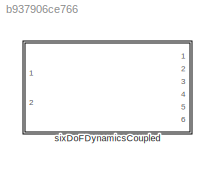
MODEL slx_b937906ce766
KIND library
CONFIG AbsTol = auto
CONFIG EnableMultiTasking = off
CONFIG FixedStep = auto
CONFIG MaxStep = auto
CONFIG MinStep = auto
CONFIG RelTol = 1e-3
CONFIG SampleTimeConstraint = Unconstrained
CONFIG Solver = VariableStepAuto
CONFIG SolverName = VariableStepAuto
CONFIG StartTime = 0.0
CONFIG StopTime = 10.0
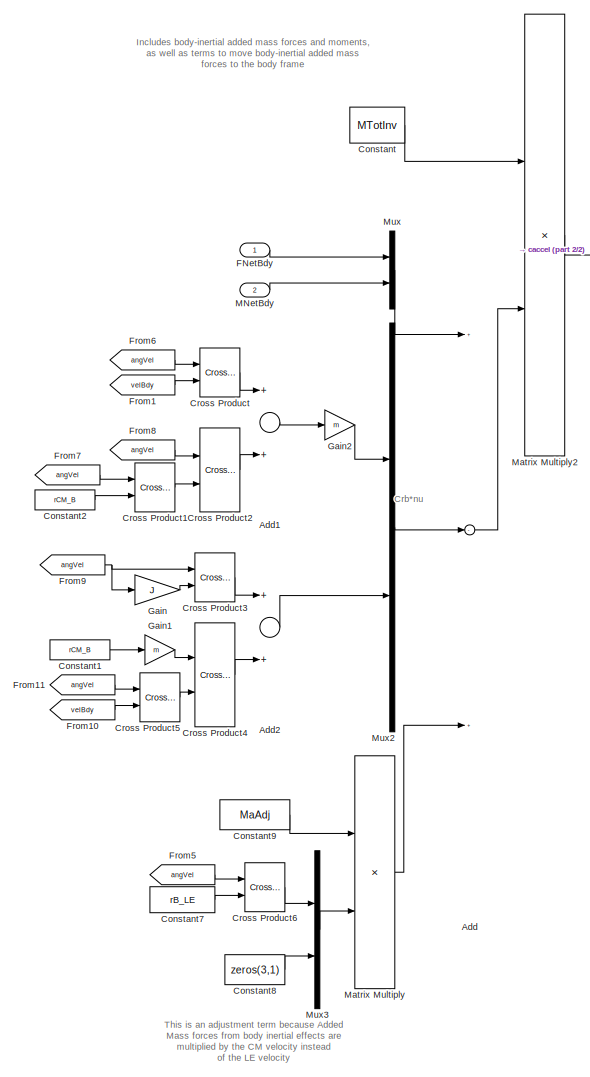
[diagram: sixDoFDynamicsCoupled - part 1/2, left side, full height]
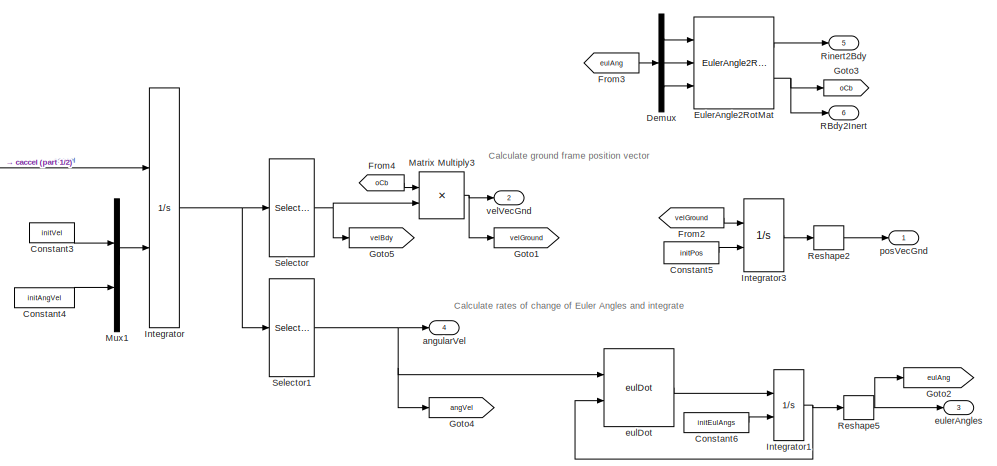
[diagram: sixDoFDynamicsCoupled - part 2/2, top right region]
BLOCK [SubSystem] sixDoFDynamicsCoupled
  Ports = [2, 6]
  RequestExecContextInheritance = off
  VariantControl = (default)
BLOCK [Sum] sixDoFDynamicsCoupled/Add
  InputSameDT = off
  Inputs = +-+
  OutDataTypeStr = Inherit: Inherit via internal rule
  Ports = [3, 1]
  SaturateOnIntegerOverflow = off
BLOCK [Sum] sixDoFDynamicsCoupled/Add1
  InputSameDT = off
  OutDataTypeStr = Inherit: Inherit via internal rule
  Ports = [2, 1]
  SaturateOnIntegerOverflow = off
BLOCK [Sum] sixDoFDynamicsCoupled/Add2
  InputSameDT = off
  OutDataTypeStr = Inherit: Inherit via internal rule
  Ports = [2, 1]
  SaturateOnIntegerOverflow = off
BLOCK [Constant] sixDoFDynamicsCoupled/Constant
  Value = MTotInv
  VectorParams1D = off
BLOCK [Constant] sixDoFDynamicsCoupled/Constant1
  Value = rCM_B
BLOCK [Constant] sixDoFDynamicsCoupled/Constant2
  Value = rCM_B
BLOCK [Constant] sixDoFDynamicsCoupled/Constant3
  Value = initVel
BLOCK [Constant] sixDoFDynamicsCoupled/Constant4
  Value = initAngVel
BLOCK [Constant] sixDoFDynamicsCoupled/Constant5
  Value = initPos
BLOCK [Constant] sixDoFDynamicsCoupled/Constant6
  Value = initEulAngs
BLOCK [Constant] sixDoFDynamicsCoupled/Constant7
  Value = rB_LE
BLOCK [Constant] sixDoFDynamicsCoupled/Constant8
  Value = zeros(3,1)
BLOCK [Constant] sixDoFDynamicsCoupled/Constant9
  Value = MaAdj
BLOCK [Reference] sixDoFDynamicsCoupled/Cross Product  REF=vrlib/Utilities/Cross Product
  Ports = [2, 1]
  SourceBlock = vrlib/Utilities/Cross Product
  SourceProductBaseCode = VR
  SourceProductName = Simulink 3D Animation
  SourceType = Cross Product
BLOCK [Reference] sixDoFDynamicsCoupled/Cross Product1  REF=vrlib/Utilities/Cross Product
  Ports = [2, 1]
  SourceBlock = vrlib/Utilities/Cross Product
  SourceProductBaseCode = VR
  SourceProductName = Simulink 3D Animation
  SourceType = Cross Product
BLOCK [Reference] sixDoFDynamicsCoupled/Cross Product2  REF=vrlib/Utilities/Cross Product
  Ports = [2, 1]
  SourceBlock = vrlib/Utilities/Cross Product
  SourceProductBaseCode = VR
  SourceProductName = Simulink 3D Animation
  SourceType = Cross Product
BLOCK [Reference] sixDoFDynamicsCoupled/Cross Product3  REF=vrlib/Utilities/Cross Product
  Ports = [2, 1]
  SourceBlock = vrlib/Utilities/Cross Product
  SourceProductBaseCode = VR
  SourceProductName = Simulink 3D Animation
  SourceType = Cross Product
BLOCK [Reference] sixDoFDynamicsCoupled/Cross Product4  REF=vrlib/Utilities/Cross Product
  Ports = [2, 1]
  SourceBlock = vrlib/Utilities/Cross Product
  SourceProductBaseCode = VR
  SourceProductName = Simulink 3D Animation
  SourceType = Cross Product
BLOCK [Reference] sixDoFDynamicsCoupled/Cross Product5  REF=vrlib/Utilities/Cross Product
  Ports = [2, 1]
  SourceBlock = vrlib/Utilities/Cross Product
  SourceProductBaseCode = VR
  SourceProductName = Simulink 3D Animation
  SourceType = Cross Product
BLOCK [Reference] sixDoFDynamicsCoupled/Cross Product6  REF=vrlib/Utilities/Cross Product
  Ports = [2, 1]
  SourceBlock = vrlib/Utilities/Cross Product
  SourceProductBaseCode = VR
  SourceProductName = Simulink 3D Animation
  SourceType = Cross Product
BLOCK [Demux] sixDoFDynamicsCoupled/Demux
  DisplayOption = bar
  Outputs = 3
  Ports = [1, 3]
BLOCK [Reference] sixDoFDynamicsCoupled/EulerAngle2RotMat  REF=eulAng2RotMat_ul/EulerAngle2RotMat
  Ports = [3, 2]
  SourceBlock = eulAng2RotMat_ul/EulerAngle2RotMat
  SourceType = SubSystem
BLOCK [Inport] sixDoFDynamicsCoupled/FNetBdy
  IconDisplay = Port number
BLOCK [From] sixDoFDynamicsCoupled/From1
  GotoTag = velBdy
BLOCK [From] sixDoFDynamicsCoupled/From10
  GotoTag = velBdy
BLOCK [From] sixDoFDynamicsCoupled/From11
  GotoTag = angVel
BLOCK [From] sixDoFDynamicsCoupled/From2
  GotoTag = velGround
BLOCK [From] sixDoFDynamicsCoupled/From3
  GotoTag = eulAng
BLOCK [From] sixDoFDynamicsCoupled/From4
  GotoTag = oCb
BLOCK [From] sixDoFDynamicsCoupled/From5
  GotoTag = angVel
BLOCK [From] sixDoFDynamicsCoupled/From6
  GotoTag = angVel
BLOCK [From] sixDoFDynamicsCoupled/From7
  GotoTag = angVel
BLOCK [From] sixDoFDynamicsCoupled/From8
  GotoTag = angVel
BLOCK [From] sixDoFDynamicsCoupled/From9
  GotoTag = angVel
BLOCK [Gain] sixDoFDynamicsCoupled/Gain
  Gain = J
  Multiplication = Matrix(K*u)
  OutDataTypeStr = Inherit: Inherit via internal rule
  ParamDataTypeStr = Inherit: Inherit via internal rule
  SaturateOnIntegerOverflow = off
BLOCK [Gain] sixDoFDynamicsCoupled/Gain1
  Gain = m
  OutDataTypeStr = Inherit: Inherit via internal rule
  ParamDataTypeStr = Inherit: Inherit via internal rule
  SaturateOnIntegerOverflow = off
BLOCK [Gain] sixDoFDynamicsCoupled/Gain2
  Gain = m
  OutDataTypeStr = Inherit: Inherit via internal rule
  ParamDataTypeStr = Inherit: Inherit via internal rule
  SaturateOnIntegerOverflow = off
BLOCK [Goto] sixDoFDynamicsCoupled/Goto1
  GotoTag = velGround
BLOCK [Goto] sixDoFDynamicsCoupled/Goto2
  GotoTag = eulAng
BLOCK [Goto] sixDoFDynamicsCoupled/Goto3
  GotoTag = oCb
BLOCK [Goto] sixDoFDynamicsCoupled/Goto4
  GotoTag = angVel
BLOCK [Goto] sixDoFDynamicsCoupled/Goto5
  GotoTag = velBdy
BLOCK [Integrator] sixDoFDynamicsCoupled/Integrator
  InitialConditionSource = external
  Ports = [2, 1]
BLOCK [Integrator] sixDoFDynamicsCoupled/Integrator1
  InitialCondition = initEulAngs
  InitialConditionSource = external
  Ports = [2, 1]
BLOCK [Integrator] sixDoFDynamicsCoupled/Integrator3
  InitialCondition = initPos
  InitialConditionSource = external
  Ports = [2, 1]
BLOCK [Inport] sixDoFDynamicsCoupled/MNetBdy
  IconDisplay = Port number
  Port = 2
BLOCK [Product] sixDoFDynamicsCoupled/Matrix Multiply
  InputSameDT = off
  Multiplication = Matrix(*)
  OutDataTypeStr = Inherit: Inherit via internal rule
  Ports = [2, 1]
  RndMeth = Floor
  SaturateOnIntegerOverflow = off
BLOCK [Product] sixDoFDynamicsCoupled/Matrix Multiply2
  InputSameDT = off
  Multiplication = Matrix(*)
  OutDataTypeStr = Inherit: Inherit via internal rule
  Ports = [2, 1]
  RndMeth = Floor
  SaturateOnIntegerOverflow = off
BLOCK [Product] sixDoFDynamicsCoupled/Matrix Multiply3
  InputSameDT = off
  Multiplication = Matrix(*)
  OutDataTypeStr = Inherit: Inherit via internal rule
  Ports = [2, 1]
  RndMeth = Floor
  SaturateOnIntegerOverflow = off
BLOCK [Mux] sixDoFDynamicsCoupled/Mux
  DisplayOption = bar
  Inputs = 2
  Ports = [2, 1]
BLOCK [Mux] sixDoFDynamicsCoupled/Mux1
  DisplayOption = bar
  Inputs = 2
  Ports = [2, 1]
BLOCK [Mux] sixDoFDynamicsCoupled/Mux2
  DisplayOption = bar
  Inputs = 2
  Ports = [2, 1]
BLOCK [Mux] sixDoFDynamicsCoupled/Mux3
  DisplayOption = bar
  Inputs = 2
  Ports = [2, 1]
BLOCK [Outport] sixDoFDynamicsCoupled/RBdy2Inert
  IconDisplay = Port number
  Port = 6
BLOCK [Reshape] sixDoFDynamicsCoupled/Reshape2
  OutputDimensionality = Column vector (2-D)
  Ports = [1, 1]
BLOCK [Reshape] sixDoFDynamicsCoupled/Reshape5
  OutputDimensionality = Column vector (2-D)
  Ports = [1, 1]
BLOCK [Outport] sixDoFDynamicsCoupled/Rinert2Bdy
  IconDisplay = Port number
  Port = 5
BLOCK [Selector] sixDoFDynamicsCoupled/Selector
  IndexOptions = Index vector (dialog)
  Indices = [1 2 3]
  InputPortWidth = 6
  OutputSizes = 1
  Ports = [1, 1]
BLOCK [Selector] sixDoFDynamicsCoupled/Selector1
  IndexOptions = Index vector (dialog)
  Indices = [4 5 6]
  InputPortWidth = 6
  OutputSizes = 1
  Ports = [1, 1]
BLOCK [Outport] sixDoFDynamicsCoupled/angularVel
  IconDisplay = Port number
  Port = 4
BLOCK [Reference] sixDoFDynamicsCoupled/eulDot  REF=eulDot/eulDot
  Ports = [2, 1]
  SourceBlock = eulDot/eulDot
  SourceType = SubSystem
BLOCK [Outport] sixDoFDynamicsCoupled/eulerAngles
  IconDisplay = Port number
  Port = 3
BLOCK [Outport] sixDoFDynamicsCoupled/posVecGnd
  IconDisplay = Port number
BLOCK [Outport] sixDoFDynamicsCoupled/velVecGnd
  IconDisplay = Port number
  Port = 2
ANNOTATION sixDoFDynamicsCoupled: Includes body-inertial added mass forces and moments, as well as terms to move body-inertial added mass forces to the body frame
ANNOTATION sixDoFDynamicsCoupled: This is an adjustment term because Added Mass forces from body inertial effects are multiplied by the CM velocity instead of the LE velocity
ANNOTATION sixDoFDynamicsCoupled: Calculate ground frame position vector
ANNOTATION sixDoFDynamicsCoupled: Calculate rates of change of Euler Angles and integrate
ANNOTATION sixDoFDynamicsCoupled: Crb*nu
LINE sixDoFDynamicsCoupled/Add1:1 -> sixDoFDynamicsCoupled/Gain2:1
LINE sixDoFDynamicsCoupled/Add2:1 -> sixDoFDynamicsCoupled/Mux2:2
LINE sixDoFDynamicsCoupled/Add:1 -> sixDoFDynamicsCoupled/Matrix Multiply2:2
LINE sixDoFDynamicsCoupled/Constant1:1 -> sixDoFDynamicsCoupled/Gain1:1
LINE sixDoFDynamicsCoupled/Constant2:1 -> sixDoFDynamicsCoupled/Cross Product1:2
LINE sixDoFDynamicsCoupled/Constant3:1 -> sixDoFDynamicsCoupled/Mux1:1
LINE sixDoFDynamicsCoupled/Constant4:1 -> sixDoFDynamicsCoupled/Mux1:2
LINE sixDoFDynamicsCoupled/Constant5:1 -> sixDoFDynamicsCoupled/Integrator3:2
LINE sixDoFDynamicsCoupled/Constant6:1 -> sixDoFDynamicsCoupled/Integrator1:2
LINE sixDoFDynamicsCoupled/Constant7:1 -> sixDoFDynamicsCoupled/Cross Product6:2
LINE sixDoFDynamicsCoupled/Constant8:1 -> sixDoFDynamicsCoupled/Mux3:2
LINE sixDoFDynamicsCoupled/Constant9:1 -> sixDoFDynamicsCoupled/Matrix Multiply:1
LINE sixDoFDynamicsCoupled/Constant:1 -> sixDoFDynamicsCoupled/Matrix Multiply2:1
LINE sixDoFDynamicsCoupled/Cross Product1:1 -> sixDoFDynamicsCoupled/Cross Product2:2
LINE sixDoFDynamicsCoupled/Cross Product2:1 -> sixDoFDynamicsCoupled/Add1:2
LINE sixDoFDynamicsCoupled/Cross Product3:1 -> sixDoFDynamicsCoupled/Add2:1
LINE sixDoFDynamicsCoupled/Cross Product4:1 -> sixDoFDynamicsCoupled/Add2:2
LINE sixDoFDynamicsCoupled/Cross Product5:1 -> sixDoFDynamicsCoupled/Cross Product4:2
LINE sixDoFDynamicsCoupled/Cross Product6:1 -> sixDoFDynamicsCoupled/Mux3:1
LINE sixDoFDynamicsCoupled/Cross Product:1 -> sixDoFDynamicsCoupled/Add1:1
LINE sixDoFDynamicsCoupled/Demux:1 -> sixDoFDynamicsCoupled/EulerAngle2RotMat:1
LINE sixDoFDynamicsCoupled/Demux:2 -> sixDoFDynamicsCoupled/EulerAngle2RotMat:2
LINE sixDoFDynamicsCoupled/Demux:3 -> sixDoFDynamicsCoupled/EulerAngle2RotMat:3
LINE sixDoFDynamicsCoupled/EulerAngle2RotMat:1 -> sixDoFDynamicsCoupled/Rinert2Bdy:1
NET sixDoFDynamicsCoupled/EulerAngle2RotMat:2 -> sixDoFDynamicsCoupled/Goto3:1, sixDoFDynamicsCoupled/RBdy2Inert:1
LINE sixDoFDynamicsCoupled/FNetBdy:1 -> sixDoFDynamicsCoupled/Mux:1
LINE sixDoFDynamicsCoupled/From10:1 -> sixDoFDynamicsCoupled/Cross Product5:2
LINE sixDoFDynamicsCoupled/From11:1 -> sixDoFDynamicsCoupled/Cross Product5:1
LINE sixDoFDynamicsCoupled/From1:1 -> sixDoFDynamicsCoupled/Cross Product:2
LINE sixDoFDynamicsCoupled/From2:1 -> sixDoFDynamicsCoupled/Integrator3:1
LINE sixDoFDynamicsCoupled/From3:1 -> sixDoFDynamicsCoupled/Demux:1
LINE sixDoFDynamicsCoupled/From4:1 -> sixDoFDynamicsCoupled/Matrix Multiply3:1
LINE sixDoFDynamicsCoupled/From5:1 -> sixDoFDynamicsCoupled/Cross Product6:1
LINE sixDoFDynamicsCoupled/From6:1 -> sixDoFDynamicsCoupled/Cross Product:1
LINE sixDoFDynamicsCoupled/From7:1 -> sixDoFDynamicsCoupled/Cross Product1:1
LINE sixDoFDynamicsCoupled/From8:1 -> sixDoFDynamicsCoupled/Cross Product2:1
NET sixDoFDynamicsCoupled/From9:1 -> sixDoFDynamicsCoupled/Cross Product3:1, sixDoFDynamicsCoupled/Gain:1
LINE sixDoFDynamicsCoupled/Gain1:1 -> sixDoFDynamicsCoupled/Cross Product4:1
LINE sixDoFDynamicsCoupled/Gain2:1 -> sixDoFDynamicsCoupled/Mux2:1
LINE sixDoFDynamicsCoupled/Gain:1 -> sixDoFDynamicsCoupled/Cross Product3:2
NET sixDoFDynamicsCoupled/Integrator1:1 -> sixDoFDynamicsCoupled/Reshape5:1, sixDoFDynamicsCoupled/eulDot:2
LINE sixDoFDynamicsCoupled/Integrator3:1 -> sixDoFDynamicsCoupled/Reshape2:1
NET sixDoFDynamicsCoupled/Integrator:1 -> sixDoFDynamicsCoupled/Selector1:1, sixDoFDynamicsCoupled/Selector:1
LINE sixDoFDynamicsCoupled/MNetBdy:1 -> sixDoFDynamicsCoupled/Mux:2
LINE sixDoFDynamicsCoupled/Matrix Multiply2:1 -> sixDoFDynamicsCoupled/Integrator:1
NET sixDoFDynamicsCoupled/Matrix Multiply3:1 -> sixDoFDynamicsCoupled/Goto1:1, sixDoFDynamicsCoupled/velVecGnd:1
LINE sixDoFDynamicsCoupled/Matrix Multiply:1 -> sixDoFDynamicsCoupled/Add:3
LINE sixDoFDynamicsCoupled/Mux1:1 -> sixDoFDynamicsCoupled/Integrator:2
LINE sixDoFDynamicsCoupled/Mux2:1 -> sixDoFDynamicsCoupled/Add:2
LINE sixDoFDynamicsCoupled/Mux3:1 -> sixDoFDynamicsCoupled/Matrix Multiply:2
LINE sixDoFDynamicsCoupled/Mux:1 -> sixDoFDynamicsCoupled/Add:1
LINE sixDoFDynamicsCoupled/Reshape2:1 -> sixDoFDynamicsCoupled/posVecGnd:1
NET sixDoFDynamicsCoupled/Reshape5:1 -> sixDoFDynamicsCoupled/Goto2:1, sixDoFDynamicsCoupled/eulerAngles:1
NET sixDoFDynamicsCoupled/Selector1:1 -> sixDoFDynamicsCoupled/Goto4:1, sixDoFDynamicsCoupled/angularVel:1, sixDoFDynamicsCoupled/eulDot:1
NET sixDoFDynamicsCoupled/Selector:1 -> sixDoFDynamicsCoupled/Goto5:1, sixDoFDynamicsCoupled/Matrix Multiply3:2
LINE sixDoFDynamicsCoupled/eulDot:1 -> sixDoFDynamicsCoupled/Integrator1:1
note: NET lines group one-source signal fan-out (src -> all destinations, sorted); 1:1 wires keep LINE
